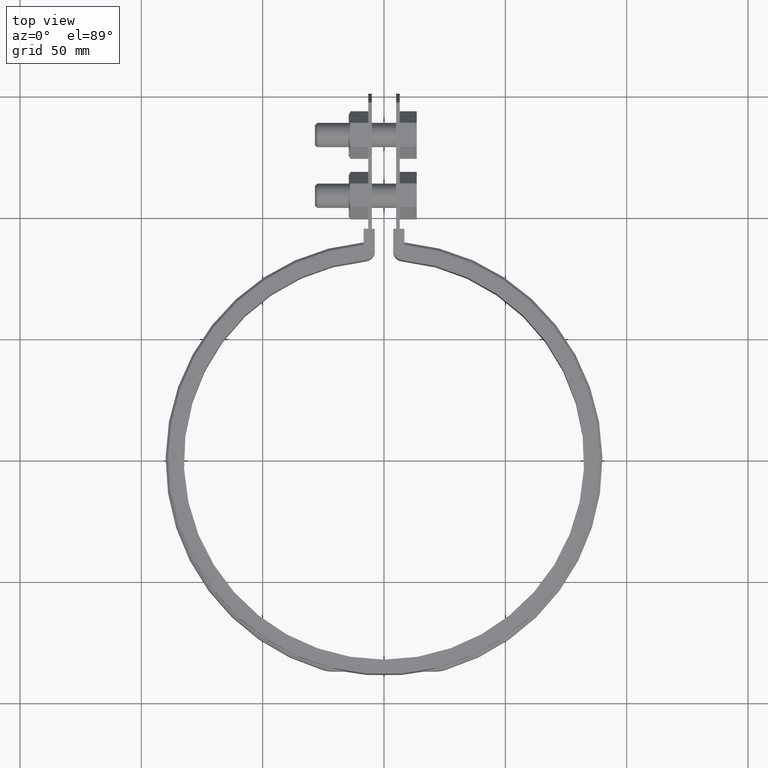
[diagram: clean part render]
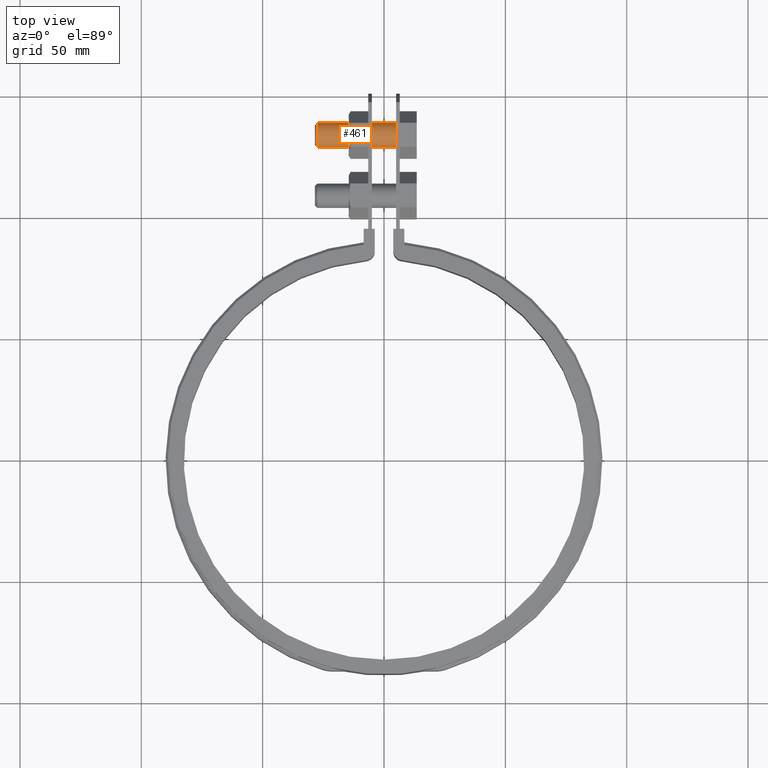
[diagram: same view with one face highlighted and labeled with its STEP entity id]
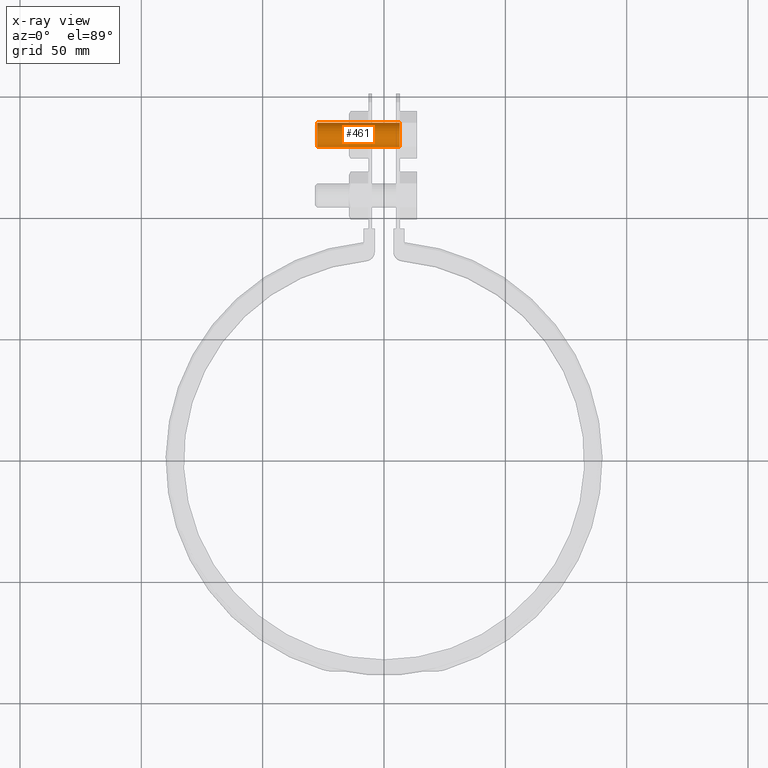
[diagram: x-ray of the same camera — body ghosted, the highlighted face saturated]
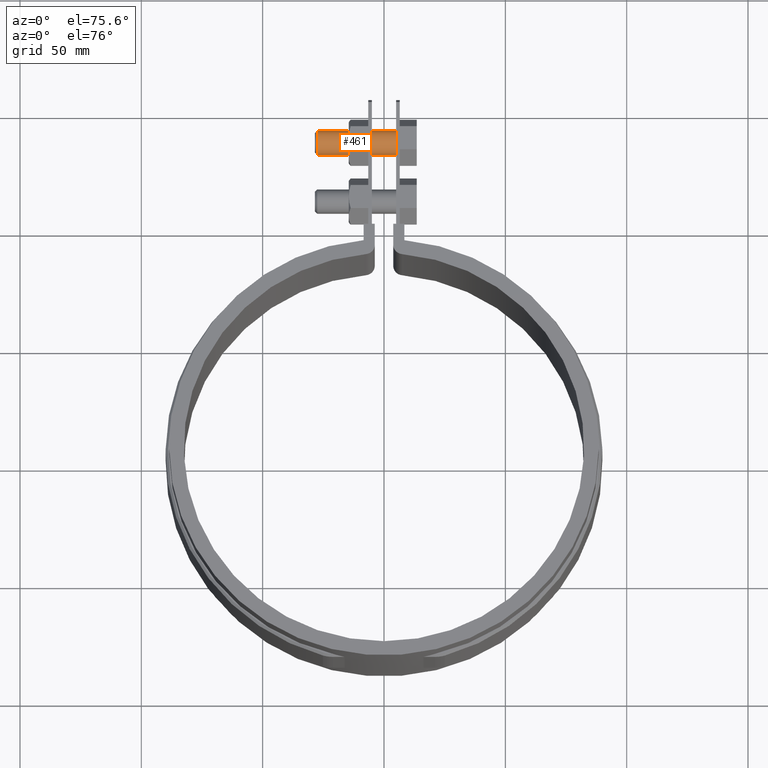
[diagram: same view with one face highlighted and labeled with its STEP entity id]
A machine part, top view. The second image highlights one B-rep face of the part: STEP entity #461.
The next image is the same camera in x-ray: the body ghosted, the highlighted face saturated — about 0% of this face is hidden behind the body in this view.
A second angle (auxiliary view) of the same face is appended — the face is thin or edge-on in the first view.
In plain terms, the highlighted cylindrical surface (bore or boss wall) has radius 5 mm, axis along (-1, -0, 0).
Its self-contained STEP definition (entity closure, byte-faithful):
#461 = ADVANCED_FACE( '', ( #792, #793 ), #794, .T. );
#792 = FACE_OUTER_BOUND( '', #1878, .T. );
#793 = FACE_OUTER_BOUND( '', #1879, .T. );
#794 = CYLINDRICAL_SURFACE( '', #1880, 4.99999999999852 );
#1878 = EDGE_LOOP( '', ( #4557 ) );
#1879 = EDGE_LOOP( '', ( #4558 ) );
#1880 = AXIS2_PLACEMENT_3D( '', #4559, #4560, #4561 );
#4557 = ORIENTED_EDGE( '', *, *, #4985, .T. );
#4558 = ORIENTED_EDGE( '', *, *, #4979, .F. );
#4559 = CARTESIAN_POINT( '', ( -28.5000000000000, 134.002813742385, -16.0000000000000 ) );
#4560 = DIRECTION( '', ( -1.00000000000000, -6.26427921880513E-017, 0.000000000000000 ) );
#4561 = DIRECTION( '', ( 5.42502493988419E-017, -0.866025403784439, -0.500000000000000 ) );
#4979 = EDGE_CURVE( '', #5614, #5614, #5615, .T. );
#4985 = EDGE_CURVE( '', #5624, #5624, #5625, .T. );
#5614 = VERTEX_POINT( '', #8578 );
#5615 = CIRCLE( '', #8579, 4.99999999999852 );
#5624 = VERTEX_POINT( '', #8593 );
#5625 = CIRCLE( '', #8594, 4.99999999999852 );
#8578 = CARTESIAN_POINT( '', ( 6.50000000000000, 129.672686723464, -18.4999999999993 ) );
#8579 = AXIS2_PLACEMENT_3D( '', #9147, #9148, #9149 );
#8593 = CARTESIAN_POINT( '', ( -27.5000000000000, 129.672686723464, -18.4999999999993 ) );
#8594 = AXIS2_PLACEMENT_3D( '', #9155, #9156, #9157 );
#9147 = CARTESIAN_POINT( '', ( 6.50000000000000, 134.002813742385, -16.0000000000000 ) );
#9148 = DIRECTION( '', ( 1.00000000000000, 6.26427921880513E-017, 0.000000000000000 ) );
#9149 = DIRECTION( '', ( 5.42502493988419E-017, -0.866025403784439, -0.500000000000000 ) );
#9155 = CARTESIAN_POINT( '', ( -27.5000000000000, 134.002813742385, -16.0000000000000 ) );
#9156 = DIRECTION( '', ( 1.00000000000000, 6.26427921880513E-017, 0.000000000000000 ) );
#9157 = DIRECTION( '', ( 5.42502493988419E-017, -0.866025403784439, -0.500000000000000 ) );